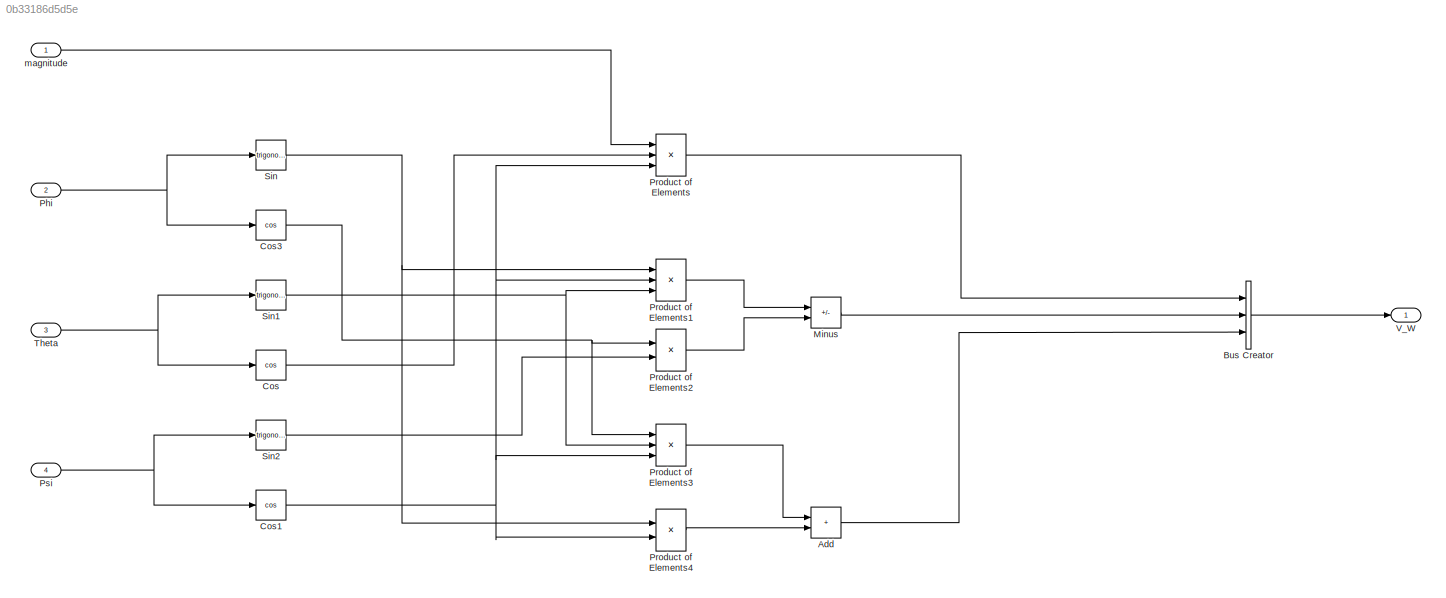
MODEL slx_0b33186d5d5e
KIND model
CONFIG AbsTol = auto
CONFIG EnableMultiTasking = off
CONFIG FixedStep = auto
CONFIG MaxStep = auto
CONFIG MinStep = auto
CONFIG RelTol = 1e-3
CONFIG SampleTimeConstraint = Unconstrained
CONFIG SolverName = VariableStepAuto
CONFIG StartTime = 0.0
CONFIG StopTime = 10.0
BLOCK [Sum] Add
  IconShape = rectangular
  Ports = [2, 1]
BLOCK [BusCreator] Bus Creator
  DisplayOption = bar
  InheritFromInputs = on
  Inputs = 3
  Ports = [3, 1]
BLOCK [Trigonometry] Cos
  Operator = cos
  Ports = [1, 1]
BLOCK [Trigonometry] Cos1
  Operator = cos
  Ports = [1, 1]
BLOCK [Trigonometry] Cos3
  Operator = cos
  Ports = [1, 1]
BLOCK [Sum] Minus
  IconShape = rectangular
  Inputs = +-
  Ports = [2, 1]
BLOCK [Inport] Phi
  Port = 2
BLOCK [Product] Product of Elements
  Inputs = ***
  Ports = [3, 1]
BLOCK [Product] Product of Elements1
  Inputs = ***
  Ports = [3, 1]
BLOCK [Product] Product of Elements2
  Inputs = **
  Ports = [2, 1]
BLOCK [Product] Product of Elements3
  Inputs = ***
  Ports = [3, 1]
BLOCK [Product] Product of Elements4
  Inputs = **
  Ports = [2, 1]
BLOCK [Inport] Psi
  Port = 4
BLOCK [Trigonometry] Sin
  Ports = [1, 1]
BLOCK [Trigonometry] Sin1
  Ports = [1, 1]
BLOCK [Trigonometry] Sin2
  Ports = [1, 1]
BLOCK [Inport] Theta
  Port = 3
BLOCK [Outport] V_W
BLOCK [Inport] magnitude
LINE Add:1 -> Bus Creator:3
LINE Bus Creator:1 -> V_W:1
NET Cos1:1 -> Product of Elements1:2, Product of Elements3:3, Product of Elements4:2, Product of Elements:3
NET Cos3:1 -> Product of Elements2:1, Product of Elements3:1
LINE Cos:1 -> Product of Elements:2
LINE Minus:1 -> Bus Creator:2
NET Phi:1 -> Cos3:1, Sin:1
LINE Product of Elements1:1 -> Minus:1
LINE Product of Elements2:1 -> Minus:2
LINE Product of Elements3:1 -> Add:1
LINE Product of Elements4:1 -> Add:2
LINE Product of Elements:1 -> Bus Creator:1
NET Psi:1 -> Cos1:1, Sin2:1
NET Sin1:1 -> Product of Elements1:3, Product of Elements3:2
LINE Sin2:1 -> Product of Elements2:2
NET Sin:1 -> Product of Elements1:1, Product of Elements4:1
NET Theta:1 -> Cos:1, Sin1:1
LINE magnitude:1 -> Product of Elements:1
note: NET lines group one-source signal fan-out (src -> all destinations, sorted); 1:1 wires keep LINE
